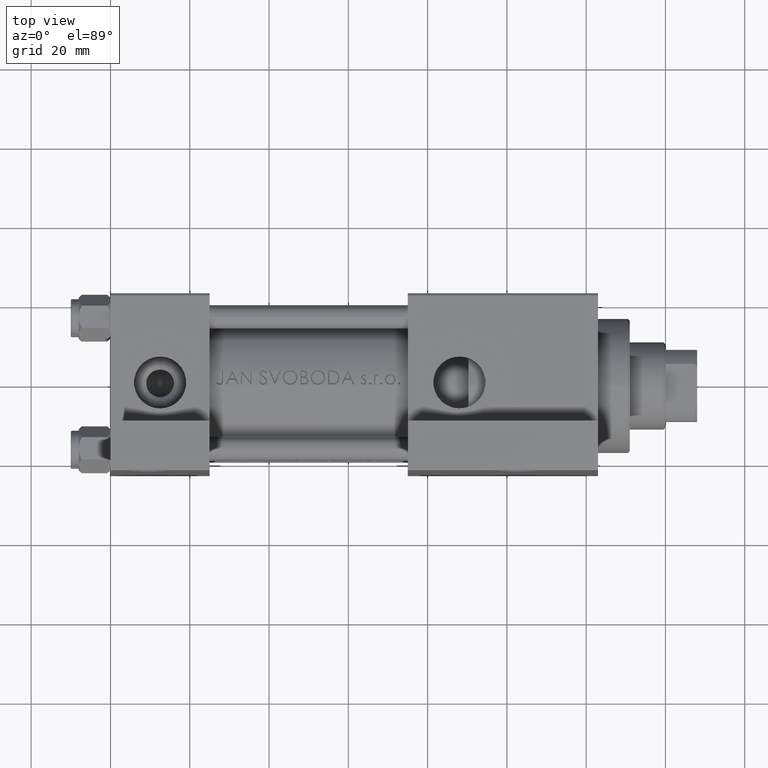
[diagram: clean part render]
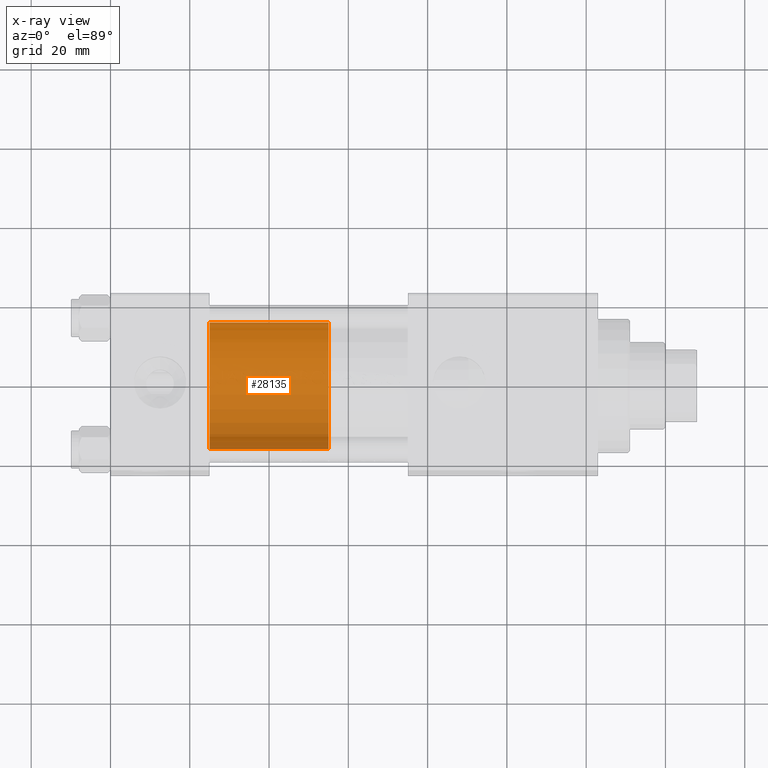
[diagram: x-ray — body ghosted, one internal face saturated and labeled with its STEP entity id]
A machine part, top view, then the same camera in x-ray: the body is ghosted and one INTERNAL B-rep face — a face not visible from any outside direction — is saturated and labeled: STEP entity #28135.
In plain terms, the highlighted cylindrical surface (partial cylindrical patch) has radius 16 mm, axis along (-1, 0, 0).
Its self-contained STEP definition (entity closure, byte-faithful):
#851 = DIRECTION ( 'NONE',  ( 1.000000000000000000, 0.000000000000000000, 0.000000000000000000 ) ) ;
#1709 = AXIS2_PLACEMENT_3D ( 'NONE', #42099, #12525, #4595 ) ;
#4490 = CARTESIAN_POINT ( 'NONE',  ( 0.000000000000000000, 0.000000000000000000, 0.000000000000000000 ) ) ;
#4595 = DIRECTION ( 'NONE',  ( -1.000000000000000000, 0.000000000000000000, 0.000000000000000000 ) ) ;
#6302 = VECTOR ( 'NONE', #30750, 1000.000000000000000 ) ;
#7545 = ORIENTED_EDGE ( 'NONE', *, *, #46307, .F. ) ;
#8181 = VERTEX_POINT ( 'NONE', #8483 ) ;
#8431 = CYLINDRICAL_SURFACE ( 'NONE', #1709, 16.00000000000000000 ) ;
#8483 = CARTESIAN_POINT ( 'NONE',  ( -16.00000000000000000, 0.000000000000000000, 30.00000000000000000 ) ) ;
#9140 = EDGE_CURVE ( 'NONE', #22810, #19321, #46983, .T. ) ;
#9628 = DIRECTION ( 'NONE',  ( -0.000000000000000000, -0.000000000000000000, -1.000000000000000000 ) ) ;
#10004 = ORIENTED_EDGE ( 'NONE', *, *, #43000, .F. ) ;
#12525 = DIRECTION ( 'NONE',  ( -0.000000000000000000, -0.000000000000000000, -1.000000000000000000 ) ) ;
#12707 = VECTOR ( 'NONE', #9628, 1000.000000000000000 ) ;
#13183 = LINE ( 'NONE', #42526, #6302 ) ;
#13938 = CARTESIAN_POINT ( 'NONE',  ( 16.00000000000000000, 1.959434878635765131E-15, 30.00000000000000000 ) ) ;
#13946 = CARTESIAN_POINT ( 'NONE',  ( 16.00000000000000000, 1.959434878635765131E-15, 30.00000000000000000 ) ) ;
#14894 = CIRCLE ( 'NONE', #44812, 16.00000000000000000 ) ;
#15294 = EDGE_LOOP ( 'NONE', ( #7545, #18201, #23511, #10004 ) ) ;
#16287 = AXIS2_PLACEMENT_3D ( 'NONE', #4490, #40804, #851 ) ;
#18201 = ORIENTED_EDGE ( 'NONE', *, *, #35057, .T. ) ;
#19321 = VERTEX_POINT ( 'NONE', #32149 ) ;
#21390 = LINE ( 'NONE', #13946, #12707 ) ;
#22177 = VERTEX_POINT ( 'NONE', #13938 ) ;
#22810 = VERTEX_POINT ( 'NONE', #34322 ) ;
#22846 = CARTESIAN_POINT ( 'NONE',  ( 0.000000000000000000, 0.000000000000000000, 30.00000000000000000 ) ) ;
#23511 = ORIENTED_EDGE ( 'NONE', *, *, #9140, .T. ) ;
#28135 = ADVANCED_FACE ( 'NONE', ( #46576 ), #8431, .T. ) ;
#30750 = DIRECTION ( 'NONE',  ( -0.000000000000000000, -0.000000000000000000, -1.000000000000000000 ) ) ;
#32149 = CARTESIAN_POINT ( 'NONE',  ( -16.00000000000000000, 0.000000000000000000, 0.000000000000000000 ) ) ;
#32957 = DIRECTION ( 'NONE',  ( 1.000000000000000000, 0.000000000000000000, 0.000000000000000000 ) ) ;
#34322 = CARTESIAN_POINT ( 'NONE',  ( 16.00000000000000000, 1.959434878635765131E-15, 0.000000000000000000 ) ) ;
#35057 = EDGE_CURVE ( 'NONE', #22177, #22810, #21390, .T. ) ;
#40804 = DIRECTION ( 'NONE',  ( 0.000000000000000000, 0.000000000000000000, 1.000000000000000000 ) ) ;
#41119 = DIRECTION ( 'NONE',  ( 0.000000000000000000, 0.000000000000000000, 1.000000000000000000 ) ) ;
#42099 = CARTESIAN_POINT ( 'NONE',  ( 0.000000000000000000, 0.000000000000000000, 30.00000000000000000 ) ) ;
#42526 = CARTESIAN_POINT ( 'NONE',  ( -16.00000000000000000, 0.000000000000000000, 30.00000000000000000 ) ) ;
#43000 = EDGE_CURVE ( 'NONE', #8181, #19321, #13183, .T. ) ;
#44812 = AXIS2_PLACEMENT_3D ( 'NONE', #22846, #41119, #32957 ) ;
#46307 = EDGE_CURVE ( 'NONE', #22177, #8181, #14894, .T. ) ;
#46576 = FACE_OUTER_BOUND ( 'NONE', #15294, .T. ) ;
#46983 = CIRCLE ( 'NONE', #16287, 16.00000000000000000 ) ;